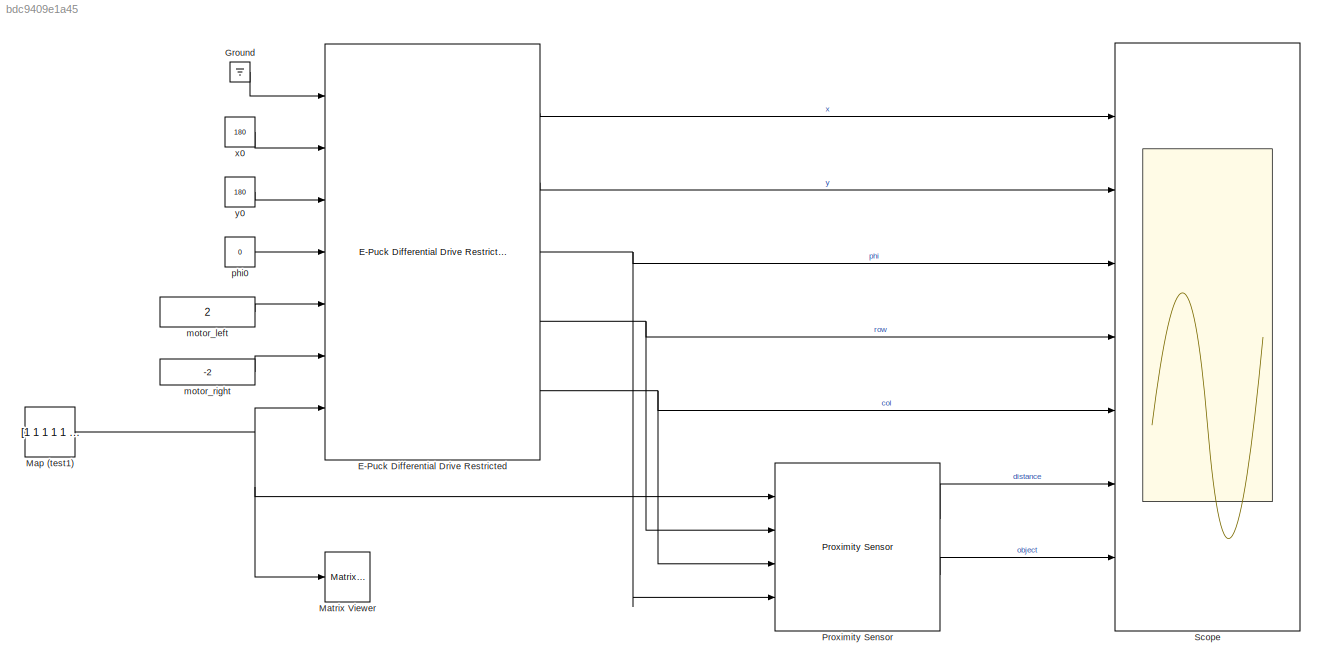
MODEL slx_bdc9409e1a45
KIND model
CONFIG AbsTol = auto
CONFIG FixedStep = 0.01
CONFIG MaxStep = 0.0001
CONFIG MinStep = auto
CONFIG RelTol = 1e-3
CONFIG SampleTimeConstraint = Unconstrained
CONFIG Solver = FixedStepAuto
CONFIG SolverMode = Auto
CONFIG SolverName = FixedStepAuto
CONFIG StartTime = 0.0
CONFIG StopTime = 10
BLOCK [Reference] E-Puck Differential Drive Restricted  REF=tinbot/E-Puck Differential Drive Restricted  (lib defined in slx_3c5c153e9850, slx_5b2796442827, +1 more)
  Ports = [7, 5]
  SourceBlock = tinbot/E-Puck Differential Drive Restricted
BLOCK [Ground] Ground
BLOCK [Constant] Map (test1)
  Value = [1 1 1 1 1 1 1 1 1 1 1 1 1 1 1 1 1 1 1 1 1 1 1 1 1 1 1 1 1 1 1 1 1 1 1 1 1 1 1 1 1 1 1 1 1 1 1 1 1 1 1 1 1 1 1 1 1 1 1 1 1 1 1 1 1 1 1 1 1 1 1 1 1 1 1 1 1 1 1 1 1 1 1 1 1 1 1 1 1 1 1 1 1 1 1 1 1 1 1 1 1 1 1 1 1 1 1 1 1 1 1 1 1 1 1 1 1 1 1 1 1 1 1 1 1 1 1 1 1 1 1 1 1 1 1 1 1 1 1 1 1 1 1 1 1 1 1 1 1 1 1 1 1 1 1 1 1 1 1 1 1 1 1 1 1 1 1 1 1 1 1 1 1 1 1 1 1 1 1 1 1 1 1 1 1 1 1 1 1 1 1 1 1 1 1 1 1 1 1 1...<+79601ch>
BLOCK [Reference] Matrix Viewer  REF=dspsnks4/Matrix
Viewer
  Ports = [1]
  SourceBlock = dspsnks4/Matrix\nViewer
  SourceType = Matrix Viewer
BLOCK [Reference] Proximity Sensor  REF=tinbot/Proximity Sensor  (lib defined in slx_3c5c153e9850, slx_5b2796442827, +1 more)
  Ports = [4, 2]
  SourceBlock = tinbot/Proximity Sensor
BLOCK [Scope] Scope
  NumInputPorts = 7
  Ports = [7]
  ScopeSpecificationString = Simulink.scopes.TimeScopeBlockCfg('CurrentConfiguration', extmgr.ConfigurationSet(extmgr.Configuration('Core','General UI',true),extmgr.Configuration('Core','Source UI',true),extmgr.Configuration('Sources','WiredSimulink',true),extmgr.Configuration('Visuals','Time Domain',true,'SerializedDisplays',{struct('MinYLimReal','80.00000','MaxYLimReal','280.00000','YLabelReal','','MinYLimMag','80.00000','M...<+6197ch>
BLOCK [Constant] motor_left
  Value = 2
BLOCK [Constant] motor_right
  Value = -2
BLOCK [Constant] phi0
  Value = 0
BLOCK [Constant] x0
  Value = 180
BLOCK [Constant] y0
  Value = 180
LINE E-Puck Differential Drive Restricted:1 -> Scope:1
LINE E-Puck Differential Drive Restricted:2 -> Scope:2
NET E-Puck Differential Drive Restricted:3 -> Proximity Sensor:4, Scope:3
NET E-Puck Differential Drive Restricted:4 -> Proximity Sensor:2, Scope:4
NET E-Puck Differential Drive Restricted:5 -> Proximity Sensor:3, Scope:5
LINE Ground:1 -> E-Puck Differential Drive Restricted:1
NET Map (test1):1 -> E-Puck Differential Drive Restricted:7, Matrix Viewer:1, Proximity Sensor:1
LINE Proximity Sensor:1 -> Scope:6
LINE Proximity Sensor:2 -> Scope:7
LINE motor_left:1 -> E-Puck Differential Drive Restricted:5
LINE motor_right:1 -> E-Puck Differential Drive Restricted:6
LINE phi0:1 -> E-Puck Differential Drive Restricted:4
LINE x0:1 -> E-Puck Differential Drive Restricted:2
LINE y0:1 -> E-Puck Differential Drive Restricted:3
note: NET lines group one-source signal fan-out (src -> all destinations, sorted); 1:1 wires keep LINE
